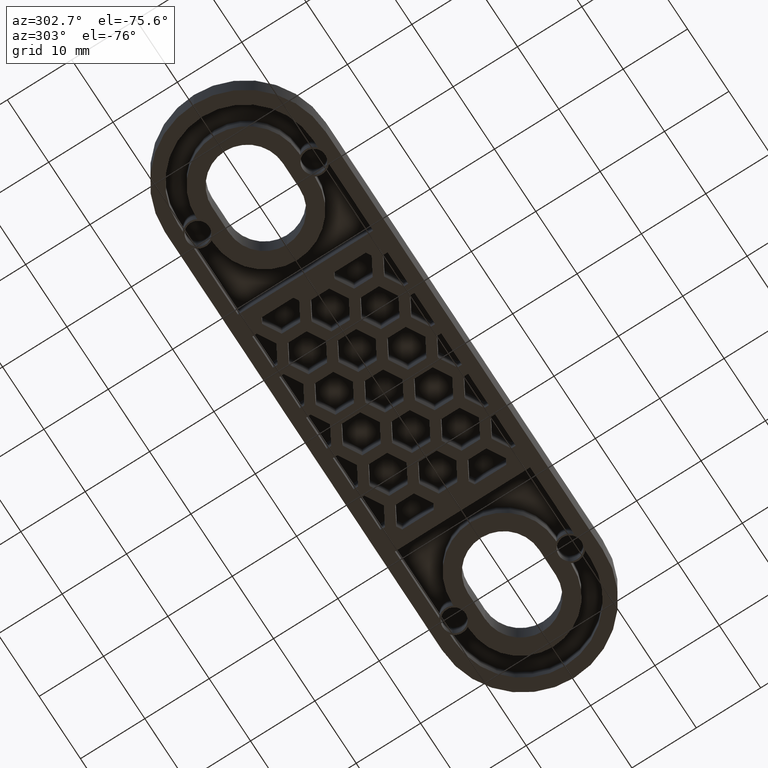
[diagram: clean part render]
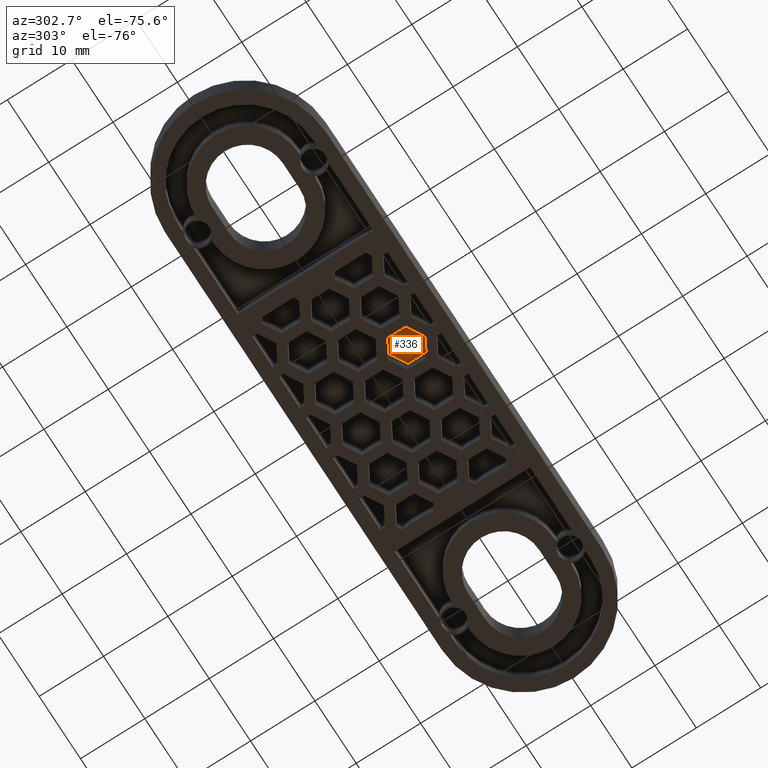
[diagram: same view with one face highlighted and labeled with its STEP entity id]
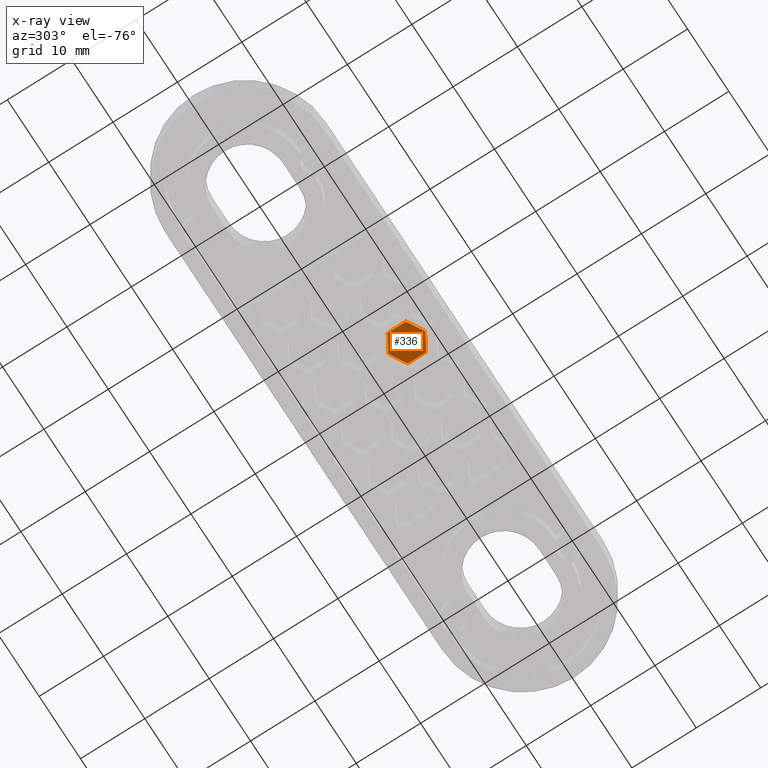
[diagram: x-ray of the same camera — body ghosted, the highlighted face saturated]
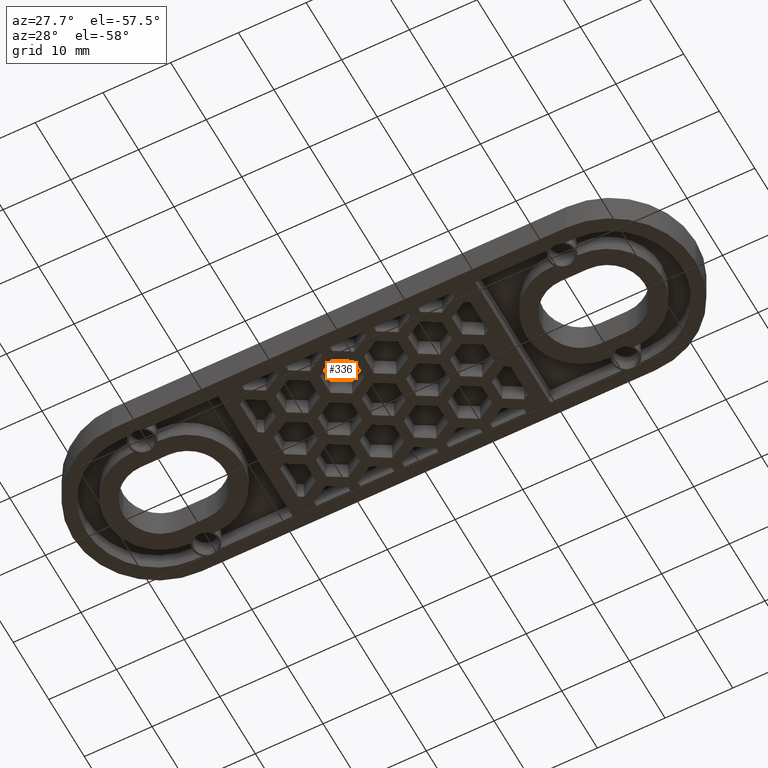
[diagram: same view with one face highlighted and labeled with its STEP entity id]
A machine part, auxiliary view. The second image highlights one B-rep face of the part: STEP entity #336.
The next image is the same camera in x-ray: the body ghosted, the highlighted face saturated — about 0% of this face is hidden behind the body in this view.
A second angle (auxiliary view) of the same face is appended — the face is thin or edge-on in the first view.
In plain terms, the highlighted planar face has unit normal (0, -0, -1).
Its self-contained STEP definition (entity closure, byte-faithful):
#336 = ADVANCED_FACE( '', ( #935 ), #936, .T. );
#935 = FACE_OUTER_BOUND( '', #1559, .T. );
#936 = PLANE( '', #1560 );
#1559 = EDGE_LOOP( '', ( #3708, #3709, #3710, #3711, #3712, #3713 ) );
#1560 = AXIS2_PLACEMENT_3D( '', #3714, #3715, #3716 );
#3708 = ORIENTED_EDGE( '', *, *, #4457, .T. );
#3709 = ORIENTED_EDGE( '', *, *, #4466, .T. );
#3710 = ORIENTED_EDGE( '', *, *, #4465, .T. );
#3711 = ORIENTED_EDGE( '', *, *, #4463, .T. );
#3712 = ORIENTED_EDGE( '', *, *, #4461, .T. );
#3713 = ORIENTED_EDGE( '', *, *, #4459, .T. );
#3714 = CARTESIAN_POINT( '', ( 33.5000000000000, -1.02246499027875E-014, 2.99999999999998 ) );
#3715 = DIRECTION( '', ( 0.000000000000000, -6.12303176911189E-017, -1.00000000000000 ) );
#3716 = DIRECTION( '', ( 0.000000000000000, -1.00000000000000, 6.12303176911189E-017 ) );
#4457 = EDGE_CURVE( '', #5588, #5590, #5592, .T. );
#4459 = EDGE_CURVE( '', #5593, #5588, #5595, .T. );
#4461 = EDGE_CURVE( '', #5596, #5593, #5598, .T. );
#4463 = EDGE_CURVE( '', #5599, #5596, #5601, .T. );
#4465 = EDGE_CURVE( '', #5602, #5599, #5604, .T. );
#4466 = EDGE_CURVE( '', #5590, #5602, #5605, .T. );
#5588 = VERTEX_POINT( '', #7271 );
#5590 = VERTEX_POINT( '', #7274 );
#5592 = LINE( '', #7277, #7278 );
#5593 = VERTEX_POINT( '', #7279 );
#5595 = LINE( '', #7282, #7283 );
#5596 = VERTEX_POINT( '', #7284 );
#5598 = LINE( '', #7287, #7288 );
#5599 = VERTEX_POINT( '', #7289 );
#5601 = LINE( '', #7292, #7293 );
#5602 = VERTEX_POINT( '', #7294 );
#5604 = LINE( '', #7297, #7298 );
#5605 = LINE( '', #7299, #7300 );
#7271 = CARTESIAN_POINT( '', ( -3.25000000000001, -2.80287989726090, 2.99999999999999 ) );
#7274 = CARTESIAN_POINT( '', ( -0.802365194784670, -4.21602251092987, 2.99999999999998 ) );
#7277 = CARTESIAN_POINT( '', ( -20.8228159672599, 7.34279013185633, 2.99999999999999 ) );
#7278 = VECTOR( '', #8361, 1000.00000000000 );
#7279 = CARTESIAN_POINT( '', ( -5.69763480521536, -4.21602251092988, 2.99999999999999 ) );
#7282 = CARTESIAN_POINT( '', ( -9.30218403273937, -6.29710997774811, 2.99999999999999 ) );
#7283 = VECTOR( '', #8363, 1000.00000000000 );
#7284 = CARTESIAN_POINT( '', ( -5.69763480521536, -7.04230773826783, 2.99999999999999 ) );
#7287 = CARTESIAN_POINT( '', ( -5.69763480521536, 10.4999999999991, 2.99999999999999 ) );
#7288 = VECTOR( '', #8365, 1000.00000000000 );
#7289 = CARTESIAN_POINT( '', ( -3.25000000000002, -8.45545035193681, 2.99999999999999 ) );
#7292 = CARTESIAN_POINT( '', ( -23.2704507724752, 3.10336229084941, 2.99999999999999 ) );
#7293 = VECTOR( '', #8367, 1000.00000000000 );
#7294 = CARTESIAN_POINT( '', ( -0.802365194784667, -7.04230773826783, 2.99999999999999 ) );
#7297 = CARTESIAN_POINT( '', ( -6.85454922752401, -10.5365378187550, 2.99999999999999 ) );
#7298 = VECTOR( '', #8369, 1000.00000000000 );
#7299 = CARTESIAN_POINT( '', ( -0.802365194784677, 10.4999999999991, 2.99999999999999 ) );
#7300 = VECTOR( '', #8370, 1000.00000000000 );
#8361 = DIRECTION( '', ( 0.866025403784439, -0.500000000000000, 3.06151588455594E-017 ) );
#8363 = DIRECTION( '', ( 0.866025403784439, 0.500000000000000, -3.06151588455594E-017 ) );
#8365 = DIRECTION( '', ( 1.11022302462516E-016, 1.00000000000000, -6.12303176911189E-017 ) );
#8367 = DIRECTION( '', ( -0.866025403784439, 0.500000000000000, -3.06151588455594E-017 ) );
#8369 = DIRECTION( '', ( -0.866025403784438, -0.500000000000000, 3.06151588455594E-017 ) );
#8370 = DIRECTION( '', ( 7.21644966006352E-016, -1.00000000000000, 6.12303176911189E-017 ) );